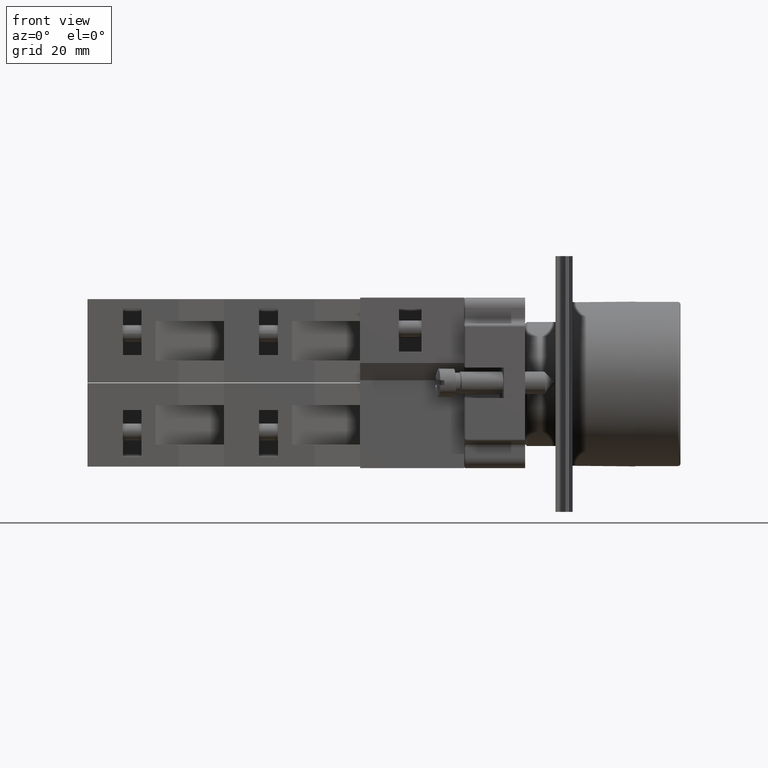
[diagram: clean part render]
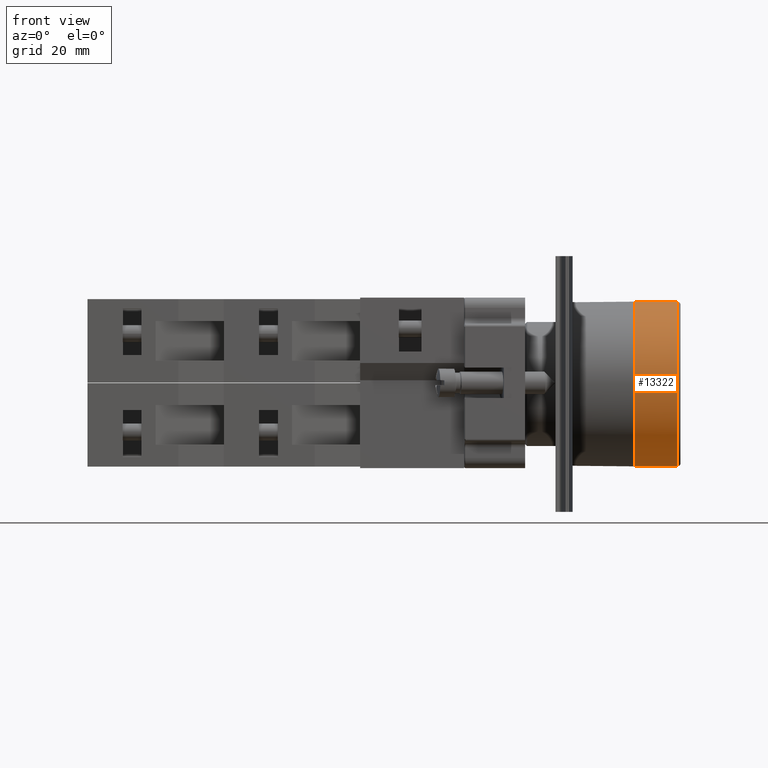
[diagram: same view with one face highlighted and labeled with its STEP entity id]
A machine part, front view. The second image highlights one B-rep face of the part: STEP entity #13322.
In plain terms, the highlighted cylindrical surface (bore or boss wall) has radius 14.45 mm, axis along (1, -0, 0).
Its self-contained STEP definition (entity closure, byte-faithful):
#13291=CARTESIAN_POINT('',(19.729104645123265,-0.031685679495351,-14.450000000000001));
#13292=VERTEX_POINT('',#13291);
#13293=CARTESIAN_POINT('',(19.729104645123265,-0.031685679495352,0.0));
#13294=DIRECTION('',(1.0,0.0,0.0));
#13295=DIRECTION('',(0.0,0.0,1.0));
#13296=AXIS2_PLACEMENT_3D('',#13293,#13294,#13295);
#13297=CIRCLE('',#13296,14.450000000000001);
#13298=EDGE_CURVE('',#13292,#13292,#13297,.T.);
#13303=CARTESIAN_POINT('',(12.229104645123263,-0.031685679495353,0.0));
#13304=DIRECTION('',(1.0,9.866240E-017,0.0));
#13305=DIRECTION('',(0.0,0.0,1.0));
#13306=AXIS2_PLACEMENT_3D('',#13303,#13304,#13305);
#13307=CYLINDRICAL_SURFACE('',#13306,14.450000000000001);
#13308=CARTESIAN_POINT('',(12.229104645123263,-0.031685679495351,-14.450000000000001));
#13309=VERTEX_POINT('',#13308);
#13310=CARTESIAN_POINT('',(12.229104645123263,-0.031685679495353,0.0));
#13311=DIRECTION('',(-1.0,0.0,0.0));
#13312=DIRECTION('',(0.0,0.0,1.0));
#13313=AXIS2_PLACEMENT_3D('',#13310,#13311,#13312);
#13314=CIRCLE('',#13313,14.450000000000001);
#13315=EDGE_CURVE('',#13309,#13309,#13314,.T.);
#13316=ORIENTED_EDGE('',*,*,#13315,.F.);
#13317=EDGE_LOOP('',(#13316));
#13318=FACE_OUTER_BOUND('',#13317,.T.);
#13319=ORIENTED_EDGE('',*,*,#13298,.F.);
#13320=EDGE_LOOP('',(#13319));
#13321=FACE_BOUND('',#13320,.T.);
#13322=ADVANCED_FACE('',(#13318,#13321),#13307,.T.);